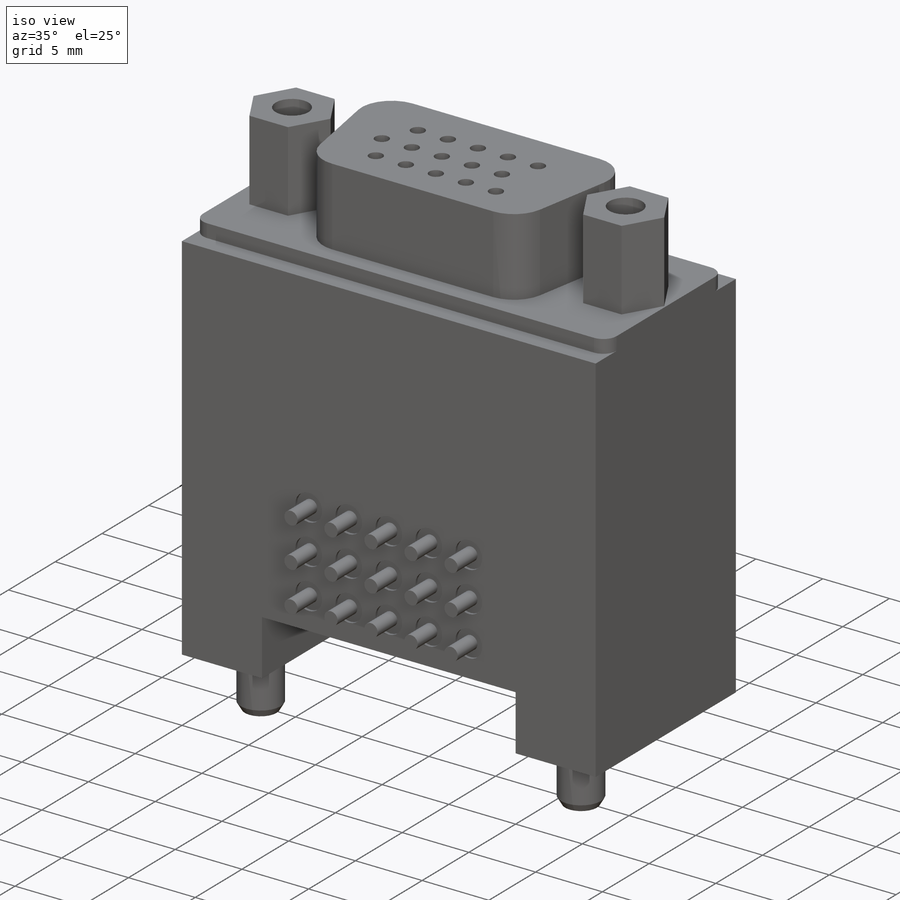
[diagram: iso view]
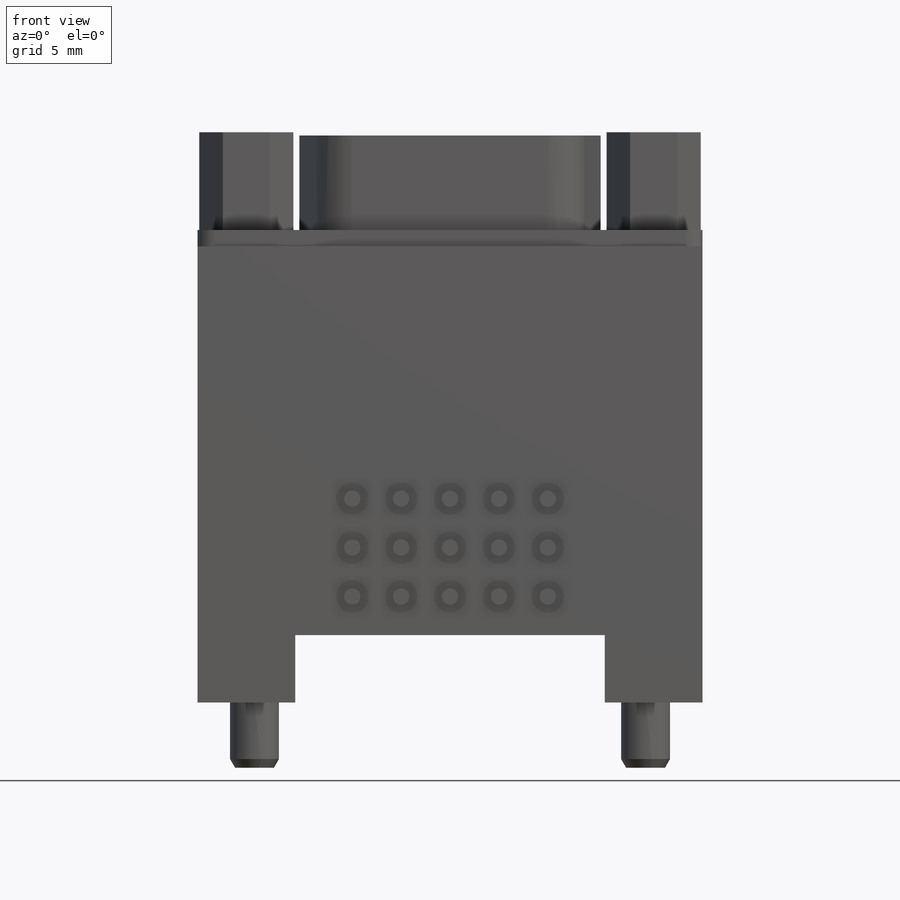
[diagram: front view]
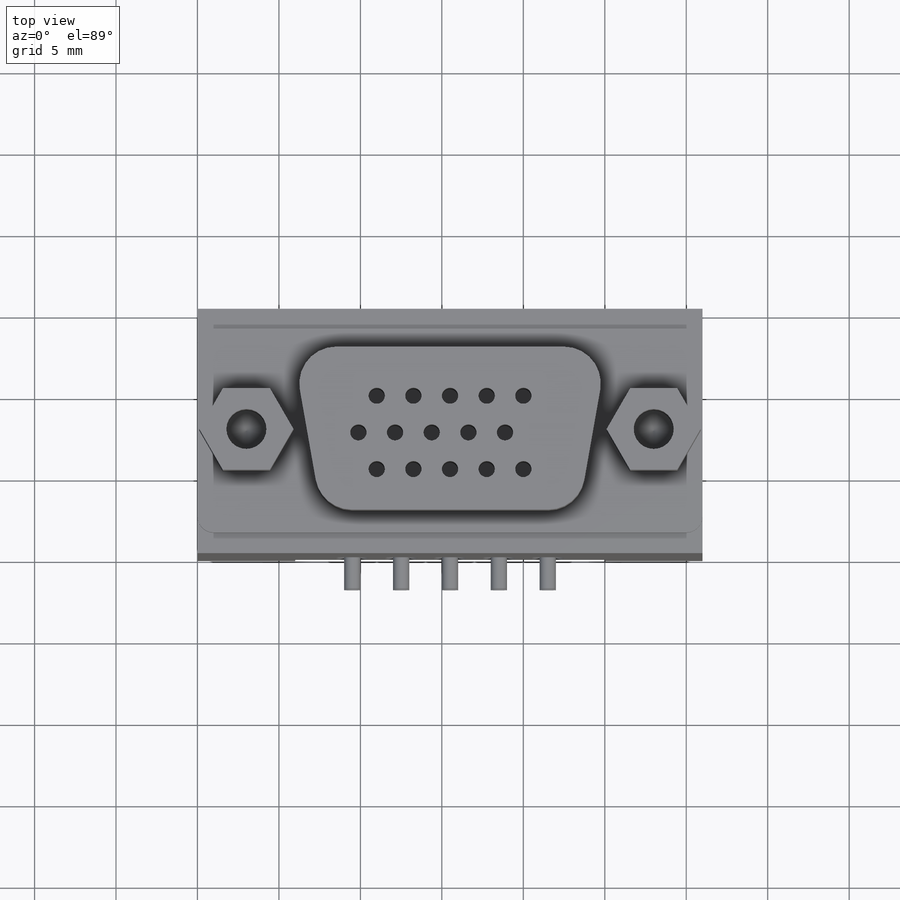
[diagram: top view]
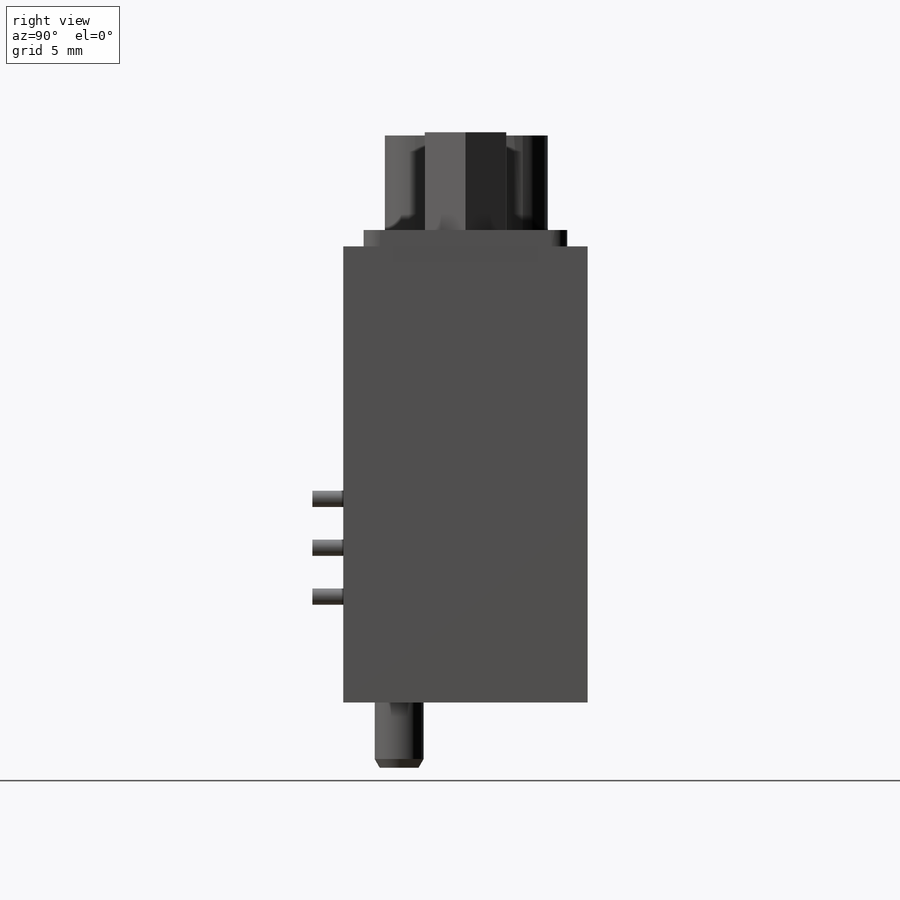
[diagram: right view]
SOLIDWORKS PART (.sldprt)
format: sldprt  version: not decoded by parser v0  size: 514,560 bytes
history: native  units: mm
features: plane x40, sketch x40, revolve x17, cut_revolve x17, extrude x5, thread x2, material x1, cut_extrude x1 (+13 scaffold rows collapsed)
feature tree (136):
  scaffold x13  (default folders/planes/origin — collapsed)
  material  "Material <not specified>"
  plane  "Plane1"
  sketch  "Sketch1"
  extrude  "Boss-Extrude1"  Depth=15mm
  plane  "Plane2"
  sketch  "Sketch2"
  extrude  "Boss-Extrude2"  Depth=1mm
  plane  "Plane3"
  sketch  "Sketch3"
  cut_extrude  "Cut-Extrude1"  Depth=0.01mm
  plane  "Plane4"
  sketch  "Sketch4"
  extrude  "Boss-Extrude3"  Depth=5.8mm
  plane  "Plane5"
  sketch  "Sketch5"
  extrude  "Boss-Extrude4"  Depth=6mm
  plane  "Plane6"
  sketch  "Sketch6"
  extrude  "Boss-Extrude5"  Depth=6mm
  plane  "Plane7"
  sketch  "Sketch7"
  revolve  "Revolve1"  [1 undecoded]
  thread  "Cosmetic Thread1"  Diameter=4mm  [1 undecoded]
  plane  "Plane8"
  sketch  "Sketch8"
  revolve  "Revolve2"  [1 undecoded]
  thread  "Cosmetic Thread2"  Diameter=4mm  [1 undecoded]
  plane  "Plane9"
  sketch  "Sketch9"
  cut_revolve  "Cut-Revolve1"  Angle=360deg
  plane  "Plane10"
  sketch  "Sketch10"
  cut_revolve  "Cut-Revolve2"  Angle=360deg
  plane  "Plane11"
  sketch  "Sketch11"
  cut_revolve  "Cut-Revolve3"  Angle=360deg
  plane  "Plane12"
  sketch  "Sketch12"
  cut_revolve  "Cut-Revolve4"  Angle=360deg
  plane  "Plane13"
  sketch  "Sketch13"
  cut_revolve  "Cut-Revolve5"  Angle=360deg
  plane  "Plane14"
  sketch  "Sketch14"
  cut_revolve  "Cut-Revolve6"  Angle=360deg
  plane  "Plane15"
  sketch  "Sketch15"
  cut_revolve  "Cut-Revolve7"  Angle=360deg
  plane  "Plane16"
  sketch  "Sketch16"
  cut_revolve  "Cut-Revolve8"  Angle=360deg
  plane  "Plane17"
  sketch  "Sketch17"
  cut_revolve  "Cut-Revolve9"  Angle=360deg
  plane  "Plane18"
  sketch  "Sketch18"
  cut_revolve  "Cut-Revolve10"  Angle=360deg
  plane  "Plane19"
  sketch  "Sketch19"
  cut_revolve  "Cut-Revolve11"  Angle=360deg
  plane  "Plane20"
  sketch  "Sketch20"
  cut_revolve  "Cut-Revolve12"  Angle=360deg
  plane  "Plane21"
  sketch  "Sketch21"
  cut_revolve  "Cut-Revolve13"  Angle=360deg
  plane  "Plane22"
  sketch  "Sketch22"
  cut_revolve  "Cut-Revolve14"  Angle=360deg
  plane  "Plane23"
  sketch  "Sketch23"
  cut_revolve  "Cut-Revolve15"  Angle=360deg
  plane  "Plane24"
  sketch  "Sketch24"
  revolve  "Revolve3"  Angle=360deg
  plane  "Plane25"
  sketch  "Sketch25"
  revolve  "Revolve4"  Angle=360deg
  plane  "Plane26"
  sketch  "Sketch26"
  revolve  "Revolve5"  Angle=360deg
  plane  "Plane27"
  sketch  "Sketch27"
  revolve  "Revolve6"  Angle=360deg
  plane  "Plane28"
  sketch  "Sketch28"
  revolve  "Revolve7"  Angle=360deg
  plane  "Plane29"
  sketch  "Sketch29"
  revolve  "Revolve8"  Angle=360deg
  plane  "Plane30"
  sketch  "Sketch30"
  revolve  "Revolve9"  Angle=360deg
  plane  "Plane31"
  sketch  "Sketch31"
  revolve  "Revolve10"  Angle=360deg
  plane  "Plane32"
  sketch  "Sketch32"
  revolve  "Revolve11"  Angle=360deg
  plane  "Plane33"
  sketch  "Sketch33"
  revolve  "Revolve12"  Angle=360deg
  plane  "Plane34"
  sketch  "Sketch34"
  revolve  "Revolve13"  Angle=360deg
  plane  "Plane35"
  sketch  "Sketch35"
  revolve  "Revolve14"  Angle=360deg
  plane  "Plane36"
  sketch  "Sketch36"
  revolve  "Revolve15"  Angle=360deg
  plane  "Plane37"
  sketch  "Sketch37"
  revolve  "Revolve16"  Angle=360deg
  plane  "Plane38"
  sketch  "Sketch38"
  revolve  "Revolve17"  Angle=360deg
  plane  "Plane39"
  sketch  "Sketch39"
  cut_revolve  "Cut-Revolve16"  Angle=360deg
  plane  "Plane40"
  sketch  "Sketch40"
  cut_revolve  "Cut-Revolve17"  Angle=360deg
decode coverage: 40 of 82 modeling features carry decoded parameters
note: 4 parameter values undecoded
note: suppression state not decoded; provenance and decode notes live in map.json
